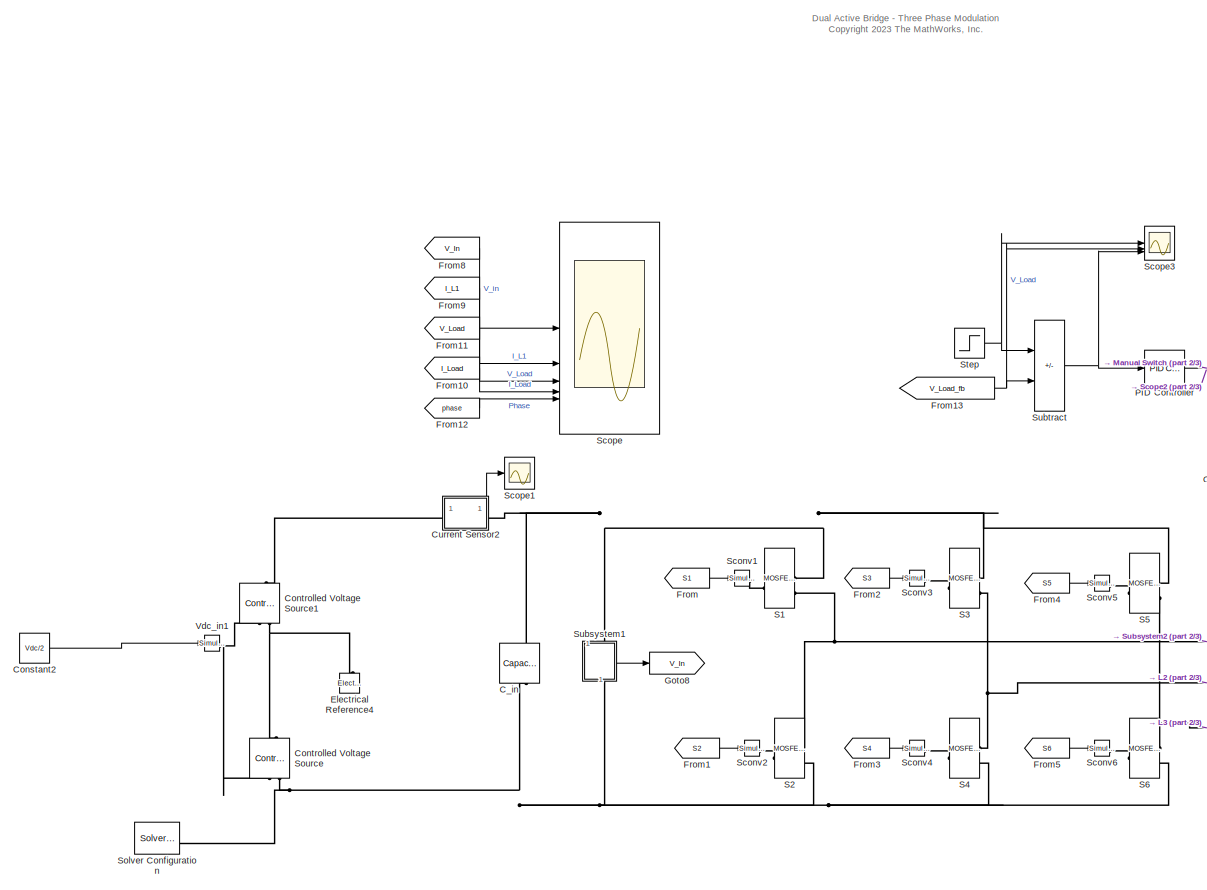
[diagram: root canvas - part 1/3, left side, full height]
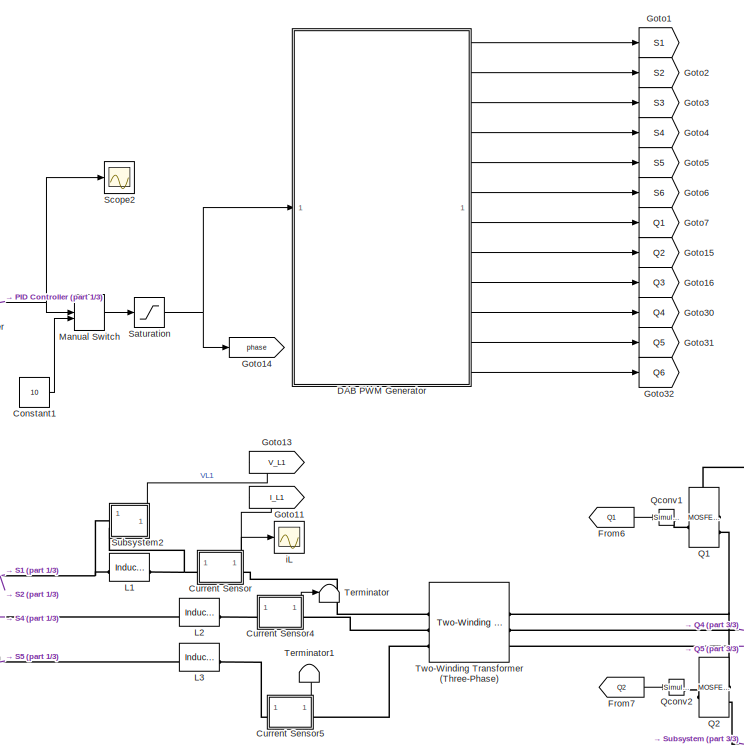
[diagram: root canvas - part 2/3, center side, full height]
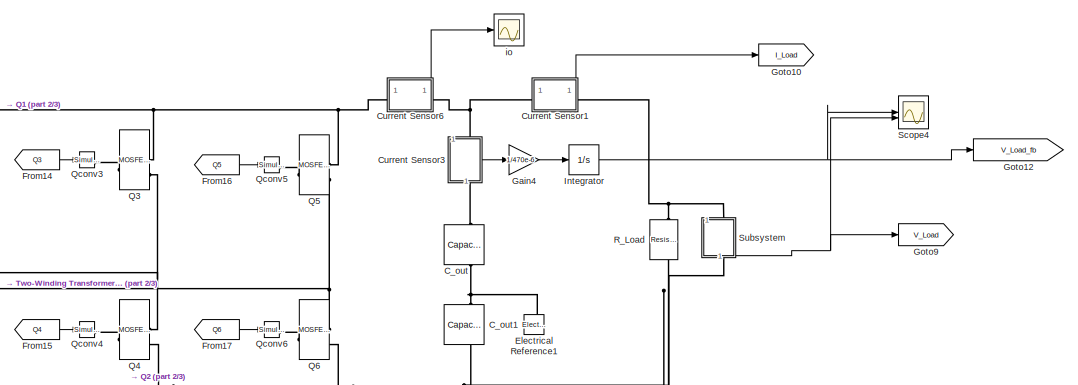
[diagram: root canvas - part 3/3, bottom right region]
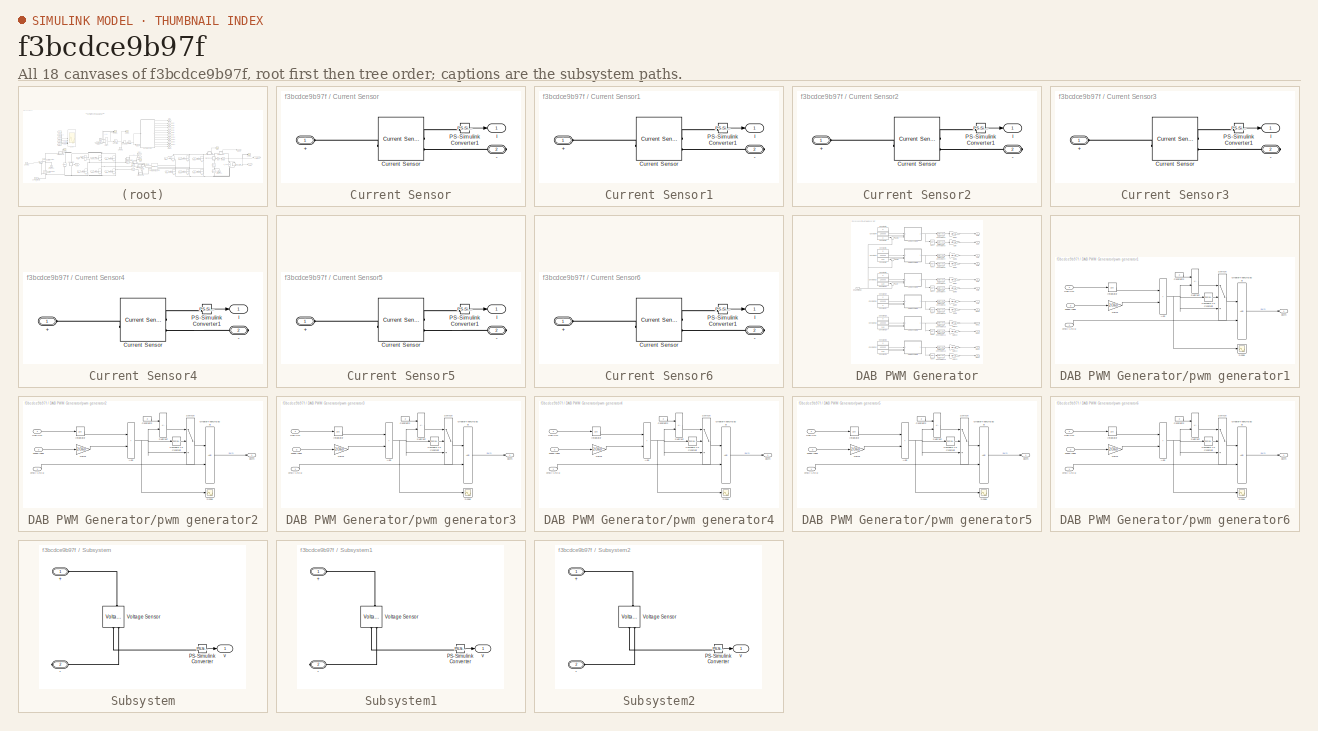
[diagram: thumbnail index - all 18 canvases of the model, root first then tree order]
MODEL slx_f3bcdce9b97f
KIND model
CONFIG AbsTol = 1e-3
CONFIG EnableMultiTasking = off
CONFIG FixedStep = auto
CONFIG MaxStep = 1/100000
CONFIG MinStep = auto
CONFIG RelTol = 1e-3
CONFIG SampleTimeConstraint = Unconstrained
CONFIG SolverName = ode23t
CONFIG StartFcn = tic
CONFIG StartTime = 0.0
CONFIG StopFcn = toc
CONFIG StopTime = 1/100000*10000
BLOCK [Reference] C_in  REF=fl_lib/Electrical/Electrical Elements/Capacitor
  NameLocation = left
  SourceBlock = fl_lib/Electrical/Electrical Elements/Capacitor
  SourceType = Capacitor
BLOCK [Reference] C_out  REF=fl_lib/Electrical/Electrical Elements/Capacitor
  NameLocation = left
  SourceBlock = fl_lib/Electrical/Electrical Elements/Capacitor
  SourceType = Capacitor
BLOCK [Reference] C_out1  REF=fl_lib/Electrical/Electrical Elements/Capacitor
  NameLocation = left
  SourceBlock = fl_lib/Electrical/Electrical Elements/Capacitor
  SourceType = Capacitor
BLOCK [Constant] Constant1
  SampleTime = -1
  Value = 10
BLOCK [Constant] Constant2
  Value = Vdc/2
BLOCK [Reference] Controlled Voltage Source  REF=fl_lib/Electrical/Electrical Sources/Controlled Voltage
Source
  NameLocation = right
  SourceBlock = fl_lib/Electrical/Electrical Sources/Controlled Voltage\nSource
  SourceType = Controlled Voltage\nSource
BLOCK [Reference] Controlled Voltage Source1  REF=fl_lib/Electrical/Electrical Sources/Controlled Voltage
Source
  NameLocation = right
  SourceBlock = fl_lib/Electrical/Electrical Sources/Controlled Voltage\nSource
  SourceType = Controlled Voltage\nSource
BLOCK [SubSystem] Current Sensor
  PortSchema = {"entries":[{"content":{"sides":[{"content":{"connectorIds":["LConn1"]},"type":"ConnectorPlacement.EquallySpacedRectSide","uuid":"e9388151-e471-4783-81c5-5134e1313d7c"},{"content":{"connectorIds":["RConn1"],"side":"RIGHT"},"type":"ConnectorPlacement.EquallySpacedRectSide","uuid":"bcb23f28-0826-4736-ab91-150a314eb643"},{"content":{"connectorIds":["Out1"],"side":"TOP"},"type":"ConnectorPlacement.Equ...<+251ch>  <repeated x9 — deduplicated; at blocks: Current Sensor, Current Sensor1, Current Sensor2, Current Sensor3, Current Sensor4, Current Sensor5, Current Sensor6, Subsystem, Subsystem1>
BLOCK [PMIOPort] Current Sensor/+
  Side = Left
BLOCK [PMIOPort] Current Sensor/-
  Port = 2
  Side = Right
BLOCK [Reference] Current Sensor/Current Sensor  REF=fl_lib/Electrical/Electrical Sensors/Current Sensor
  SourceBlock = fl_lib/Electrical/Electrical Sensors/Current Sensor
  SourceType = Current Sensor
BLOCK [Reference] Current Sensor/PS-Simulink Converter1  REF=nesl_utility/PS-Simulink
Converter
  SourceBlock = nesl_utility/PS-Simulink\nConverter
  SourceType = PS-Simulink\nConverter
BLOCK [Outport] Current Sensor/i
BLOCK [SubSystem] Current Sensor1
BLOCK [PMIOPort] Current Sensor1/+
  Side = Left
BLOCK [PMIOPort] Current Sensor1/-
  Port = 2
  Side = Right
BLOCK [Reference] Current Sensor1/Current Sensor  REF=fl_lib/Electrical/Electrical Sensors/Current Sensor
  SourceBlock = fl_lib/Electrical/Electrical Sensors/Current Sensor
  SourceType = Current Sensor
BLOCK [Reference] Current Sensor1/PS-Simulink Converter1  REF=nesl_utility/PS-Simulink
Converter
  SourceBlock = nesl_utility/PS-Simulink\nConverter
  SourceType = PS-Simulink\nConverter
BLOCK [Outport] Current Sensor1/i
BLOCK [SubSystem] Current Sensor2
BLOCK [PMIOPort] Current Sensor2/+
  Side = Left
BLOCK [PMIOPort] Current Sensor2/-
  Port = 2
  Side = Right
BLOCK [Reference] Current Sensor2/Current Sensor  REF=fl_lib/Electrical/Electrical Sensors/Current Sensor
  SourceBlock = fl_lib/Electrical/Electrical Sensors/Current Sensor
  SourceType = Current Sensor
BLOCK [Reference] Current Sensor2/PS-Simulink Converter1  REF=nesl_utility/PS-Simulink
Converter
  SourceBlock = nesl_utility/PS-Simulink\nConverter
  SourceType = PS-Simulink\nConverter
BLOCK [Outport] Current Sensor2/i
BLOCK [SubSystem] Current Sensor3
  NameLocation = left
BLOCK [PMIOPort] Current Sensor3/+
  Side = Left
BLOCK [PMIOPort] Current Sensor3/-
  Port = 2
  Side = Right
BLOCK [Reference] Current Sensor3/Current Sensor  REF=fl_lib/Electrical/Electrical Sensors/Current Sensor
  SourceBlock = fl_lib/Electrical/Electrical Sensors/Current Sensor
  SourceType = Current Sensor
BLOCK [Reference] Current Sensor3/PS-Simulink Converter1  REF=nesl_utility/PS-Simulink
Converter
  SourceBlock = nesl_utility/PS-Simulink\nConverter
  SourceType = PS-Simulink\nConverter
BLOCK [Outport] Current Sensor3/i
BLOCK [SubSystem] Current Sensor4
BLOCK [PMIOPort] Current Sensor4/+
  Side = Left
BLOCK [PMIOPort] Current Sensor4/-
  Port = 2
  Side = Right
BLOCK [Reference] Current Sensor4/Current Sensor  REF=fl_lib/Electrical/Electrical Sensors/Current Sensor
  SourceBlock = fl_lib/Electrical/Electrical Sensors/Current Sensor
  SourceType = Current Sensor
BLOCK [Reference] Current Sensor4/PS-Simulink Converter1  REF=nesl_utility/PS-Simulink
Converter
  SourceBlock = nesl_utility/PS-Simulink\nConverter
  SourceType = PS-Simulink\nConverter
BLOCK [Outport] Current Sensor4/i
BLOCK [SubSystem] Current Sensor5
BLOCK [PMIOPort] Current Sensor5/+
  Side = Left
BLOCK [PMIOPort] Current Sensor5/-
  Port = 2
  Side = Right
BLOCK [Reference] Current Sensor5/Current Sensor  REF=fl_lib/Electrical/Electrical Sensors/Current Sensor
  SourceBlock = fl_lib/Electrical/Electrical Sensors/Current Sensor
  SourceType = Current Sensor
BLOCK [Reference] Current Sensor5/PS-Simulink Converter1  REF=nesl_utility/PS-Simulink
Converter
  SourceBlock = nesl_utility/PS-Simulink\nConverter
  SourceType = PS-Simulink\nConverter
BLOCK [Outport] Current Sensor5/i
BLOCK [SubSystem] Current Sensor6
BLOCK [PMIOPort] Current Sensor6/+
  Side = Left
BLOCK [PMIOPort] Current Sensor6/-
  Port = 2
  Side = Right
BLOCK [Reference] Current Sensor6/Current Sensor  REF=fl_lib/Electrical/Electrical Sensors/Current Sensor
  SourceBlock = fl_lib/Electrical/Electrical Sensors/Current Sensor
  SourceType = Current Sensor
BLOCK [Reference] Current Sensor6/PS-Simulink Converter1  REF=nesl_utility/PS-Simulink
Converter
  SourceBlock = nesl_utility/PS-Simulink\nConverter
  SourceType = PS-Simulink\nConverter
BLOCK [Outport] Current Sensor6/i
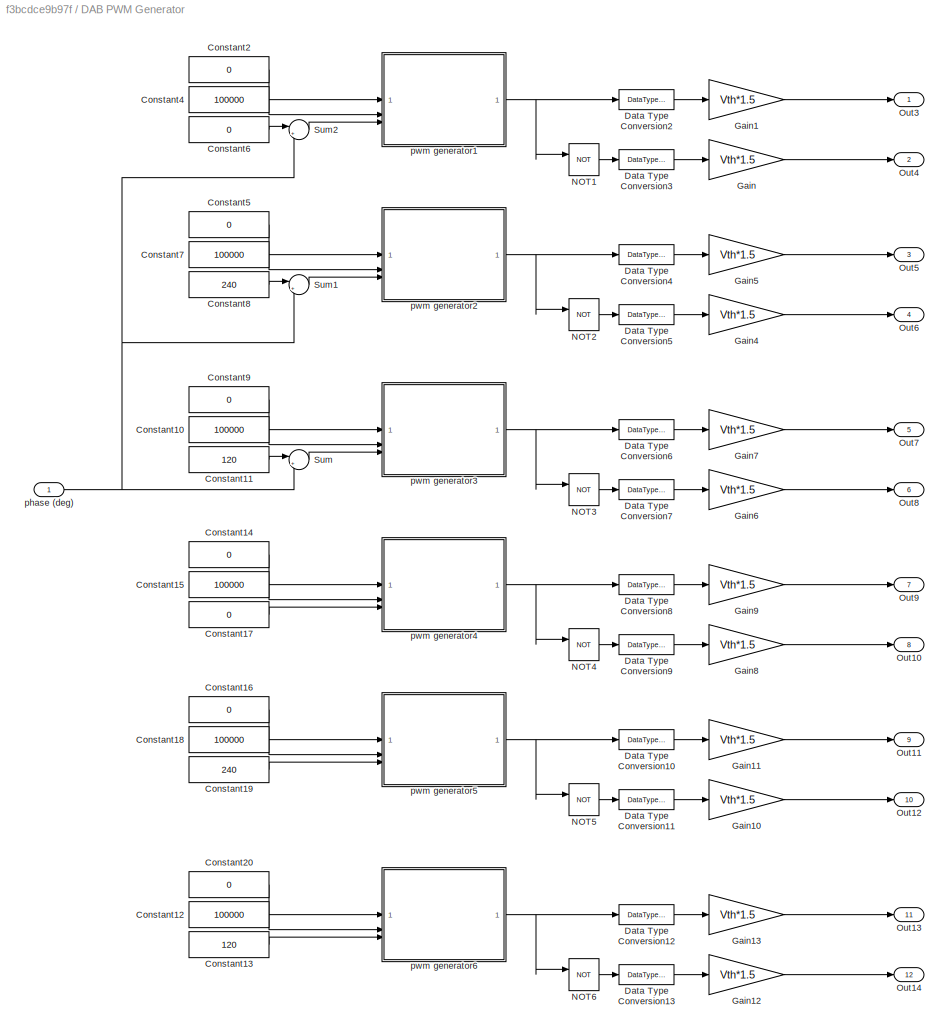
BLOCK [SubSystem] DAB PWM Generator
BLOCK [Constant] DAB PWM Generator/Constant10
  Value = 100000
BLOCK [Constant] DAB PWM Generator/Constant11
  Value = 120
BLOCK [Constant] DAB PWM Generator/Constant12
  Value = 100000
BLOCK [Constant] DAB PWM Generator/Constant13
  Value = 120
BLOCK [Constant] DAB PWM Generator/Constant14
  Value = 0
BLOCK [Constant] DAB PWM Generator/Constant15
  Value = 100000
BLOCK [Constant] DAB PWM Generator/Constant16
  Value = 0
BLOCK [Constant] DAB PWM Generator/Constant17
  Value = 0
BLOCK [Constant] DAB PWM Generator/Constant18
  Value = 100000
BLOCK [Constant] DAB PWM Generator/Constant19
  Value = 240
BLOCK [Constant] DAB PWM Generator/Constant2
  Value = 0
BLOCK [Constant] DAB PWM Generator/Constant20
  Value = 0
BLOCK [Constant] DAB PWM Generator/Constant4
  Value = 100000
BLOCK [Constant] DAB PWM Generator/Constant5
  Value = 0
BLOCK [Constant] DAB PWM Generator/Constant6
  Value = 0
BLOCK [Constant] DAB PWM Generator/Constant7
  Value = 100000
BLOCK [Constant] DAB PWM Generator/Constant8
  Value = 240
BLOCK [Constant] DAB PWM Generator/Constant9
  Value = 0
BLOCK [DataTypeConversion] DAB PWM Generator/Data Type Conversion10
  RndMeth = Floor
  SaturateOnIntegerOverflow = off
BLOCK [DataTypeConversion] DAB PWM Generator/Data Type Conversion11
  RndMeth = Floor
  SaturateOnIntegerOverflow = off
BLOCK [DataTypeConversion] DAB PWM Generator/Data Type Conversion12
  RndMeth = Floor
  SaturateOnIntegerOverflow = off
BLOCK [DataTypeConversion] DAB PWM Generator/Data Type Conversion13
  RndMeth = Floor
  SaturateOnIntegerOverflow = off
BLOCK [DataTypeConversion] DAB PWM Generator/Data Type Conversion2
  RndMeth = Floor
  SaturateOnIntegerOverflow = off
BLOCK [DataTypeConversion] DAB PWM Generator/Data Type Conversion3
  RndMeth = Floor
  SaturateOnIntegerOverflow = off
BLOCK [DataTypeConversion] DAB PWM Generator/Data Type Conversion4
  RndMeth = Floor
  SaturateOnIntegerOverflow = off
BLOCK [DataTypeConversion] DAB PWM Generator/Data Type Conversion5
  RndMeth = Floor
  SaturateOnIntegerOverflow = off
BLOCK [DataTypeConversion] DAB PWM Generator/Data Type Conversion6
  RndMeth = Floor
  SaturateOnIntegerOverflow = off
BLOCK [DataTypeConversion] DAB PWM Generator/Data Type Conversion7
  RndMeth = Floor
  SaturateOnIntegerOverflow = off
BLOCK [DataTypeConversion] DAB PWM Generator/Data Type Conversion8
  RndMeth = Floor
  SaturateOnIntegerOverflow = off
BLOCK [DataTypeConversion] DAB PWM Generator/Data Type Conversion9
  RndMeth = Floor
  SaturateOnIntegerOverflow = off
BLOCK [Gain] DAB PWM Generator/Gain
  Gain = Vth*1.5
BLOCK [Gain] DAB PWM Generator/Gain1
  Gain = Vth*1.5
BLOCK [Gain] DAB PWM Generator/Gain10
  Gain = Vth*1.5
BLOCK [Gain] DAB PWM Generator/Gain11
  Gain = Vth*1.5
BLOCK [Gain] DAB PWM Generator/Gain12
  Gain = Vth*1.5
BLOCK [Gain] DAB PWM Generator/Gain13
  Gain = Vth*1.5
BLOCK [Gain] DAB PWM Generator/Gain4
  Gain = Vth*1.5
BLOCK [Gain] DAB PWM Generator/Gain5
  Gain = Vth*1.5
BLOCK [Gain] DAB PWM Generator/Gain6
  Gain = Vth*1.5
BLOCK [Gain] DAB PWM Generator/Gain7
  Gain = Vth*1.5
BLOCK [Gain] DAB PWM Generator/Gain8
  Gain = Vth*1.5
BLOCK [Gain] DAB PWM Generator/Gain9
  Gain = Vth*1.5
BLOCK [Logic] DAB PWM Generator/NOT1
  AllPortsSameDT = off
  IconShape = distinctive
  Operator = NOT
  OutDataTypeStr = boolean
BLOCK [Logic] DAB PWM Generator/NOT2
  AllPortsSameDT = off
  IconShape = distinctive
  Operator = NOT
  OutDataTypeStr = boolean
BLOCK [Logic] DAB PWM Generator/NOT3
  AllPortsSameDT = off
  IconShape = distinctive
  Operator = NOT
  OutDataTypeStr = boolean
BLOCK [Logic] DAB PWM Generator/NOT4
  AllPortsSameDT = off
  IconShape = distinctive
  Operator = NOT
  OutDataTypeStr = boolean
BLOCK [Logic] DAB PWM Generator/NOT5
  AllPortsSameDT = off
  IconShape = distinctive
  Operator = NOT
  OutDataTypeStr = boolean
BLOCK [Logic] DAB PWM Generator/NOT6
  AllPortsSameDT = off
  IconShape = distinctive
  Operator = NOT
  OutDataTypeStr = boolean
BLOCK [Outport] DAB PWM Generator/Out10
  Port = 8
BLOCK [Outport] DAB PWM Generator/Out11
  Port = 9
BLOCK [Outport] DAB PWM Generator/Out12
  Port = 10
BLOCK [Outport] DAB PWM Generator/Out13
  Port = 11
BLOCK [Outport] DAB PWM Generator/Out14
  Port = 12
BLOCK [Outport] DAB PWM Generator/Out3
BLOCK [Outport] DAB PWM Generator/Out4
  Port = 2
BLOCK [Outport] DAB PWM Generator/Out5
  Port = 3
BLOCK [Outport] DAB PWM Generator/Out6
  Port = 4
BLOCK [Outport] DAB PWM Generator/Out7
  Port = 5
BLOCK [Outport] DAB PWM Generator/Out8
  Port = 6
BLOCK [Outport] DAB PWM Generator/Out9
  Port = 7
BLOCK [Sum] DAB PWM Generator/Sum
  Inputs = |++
BLOCK [Sum] DAB PWM Generator/Sum1
  Inputs = |++
BLOCK [Sum] DAB PWM Generator/Sum2
  Inputs = |++
BLOCK [Inport] DAB PWM Generator/phase (deg)
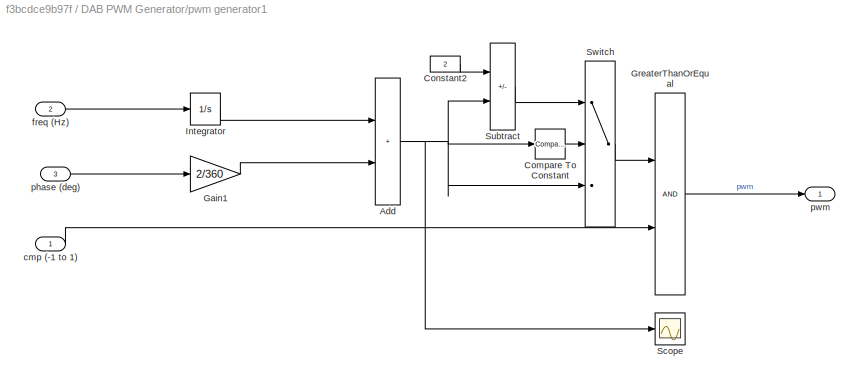
BLOCK [SubSystem] DAB PWM Generator/pwm generator1
BLOCK [Sum] DAB PWM Generator/pwm generator1/Add
  IconShape = rectangular
BLOCK [Reference] DAB PWM Generator/pwm generator1/Compare To Constant  REF=simulink/Logic and Bit
Operations/Compare
To Constant
  NameLocation = top
  SourceBlock = simulink/Logic and Bit\nOperations/Compare\nTo Constant
  SourceType = Compare To Constant
BLOCK [Constant] DAB PWM Generator/pwm generator1/Constant2
  Value = 2
BLOCK [Gain] DAB PWM Generator/pwm generator1/Gain1
  Gain = 2/360
BLOCK [RelationalOperator] DAB PWM Generator/pwm generator1/GreaterThanOrEqual
  InputSameDT = off
  OutDataTypeStr = boolean
  RndMeth = Simplest
BLOCK [Integrator] DAB PWM Generator/pwm generator1/Integrator
  WrapState = on
  WrappedStateLowerValue = -1
  WrappedStateUpperValue = 1
BLOCK [Scope] DAB PWM Generator/pwm generator1/Scope
  Floating = off
  NumInputPorts = 1
  ScopeSpecificationString = Simulink.scopes.TimeScopeBlockCfg('CurrentConfiguration', extmgr.ConfigurationSet(extmgr.Configuration('Core','General UI',true),extmgr.Configuration('Core','Source UI',true),extmgr.Configuration('Sources','WiredSimulink',true,'DataLoggingVariableName','ScopeData1'),extmgr.Configuration('Visuals','Time Domain',true,'SerializedDisplays',{struct('MinYLimReal','-1.25','MaxYLimReal','1.25','YLabelReal...<+1344ch>  <repeated x6 — deduplicated; at blocks: Scope>
BLOCK [Sum] DAB PWM Generator/pwm generator1/Subtract
  IconShape = rectangular
  Inputs = -+
BLOCK [Switch] DAB PWM Generator/pwm generator1/Switch
  Criteria = u2 > Threshold
  InputSameDT = off
  SaturateOnIntegerOverflow = off
BLOCK [Inport] DAB PWM Generator/pwm generator1/cmp (-1 to 1)
BLOCK [Inport] DAB PWM Generator/pwm generator1/freq (Hz)
  Port = 2
BLOCK [Inport] DAB PWM Generator/pwm generator1/phase (deg)
  Port = 3
BLOCK [Outport] DAB PWM Generator/pwm generator1/pwm
BLOCK [SubSystem] DAB PWM Generator/pwm generator2
BLOCK [Sum] DAB PWM Generator/pwm generator2/Add
  IconShape = rectangular
BLOCK [Reference] DAB PWM Generator/pwm generator2/Compare To Constant  REF=simulink/Logic and Bit
Operations/Compare
To Constant
  NameLocation = top
  SourceBlock = simulink/Logic and Bit\nOperations/Compare\nTo Constant
  SourceType = Compare To Constant
BLOCK [Constant] DAB PWM Generator/pwm generator2/Constant2
  Value = 2
BLOCK [Gain] DAB PWM Generator/pwm generator2/Gain1
  Gain = 2/360
BLOCK [RelationalOperator] DAB PWM Generator/pwm generator2/GreaterThanOrEqual
  InputSameDT = off
  OutDataTypeStr = boolean
  RndMeth = Simplest
BLOCK [Integrator] DAB PWM Generator/pwm generator2/Integrator
  WrapState = on
  WrappedStateLowerValue = -1
  WrappedStateUpperValue = 1
BLOCK [Scope] DAB PWM Generator/pwm generator2/Scope
  Floating = off
  NumInputPorts = 1
BLOCK [Sum] DAB PWM Generator/pwm generator2/Subtract
  IconShape = rectangular
  Inputs = -+
BLOCK [Switch] DAB PWM Generator/pwm generator2/Switch
  Criteria = u2 > Threshold
  InputSameDT = off
  SaturateOnIntegerOverflow = off
BLOCK [Inport] DAB PWM Generator/pwm generator2/cmp (-1 to 1)
BLOCK [Inport] DAB PWM Generator/pwm generator2/freq (Hz)
  Port = 2
BLOCK [Inport] DAB PWM Generator/pwm generator2/phase (deg)
  Port = 3
BLOCK [Outport] DAB PWM Generator/pwm generator2/pwm
BLOCK [SubSystem] DAB PWM Generator/pwm generator3
BLOCK [Sum] DAB PWM Generator/pwm generator3/Add
  IconShape = rectangular
BLOCK [Reference] DAB PWM Generator/pwm generator3/Compare To Constant  REF=simulink/Logic and Bit
Operations/Compare
To Constant
  NameLocation = top
  SourceBlock = simulink/Logic and Bit\nOperations/Compare\nTo Constant
  SourceType = Compare To Constant
BLOCK [Constant] DAB PWM Generator/pwm generator3/Constant2
  Value = 2
BLOCK [Gain] DAB PWM Generator/pwm generator3/Gain1
  Gain = 2/360
BLOCK [RelationalOperator] DAB PWM Generator/pwm generator3/GreaterThanOrEqual
  InputSameDT = off
  OutDataTypeStr = boolean
  RndMeth = Simplest
BLOCK [Integrator] DAB PWM Generator/pwm generator3/Integrator
  WrapState = on
  WrappedStateLowerValue = -1
  WrappedStateUpperValue = 1
BLOCK [Scope] DAB PWM Generator/pwm generator3/Scope
  Floating = off
  NumInputPorts = 1
BLOCK [Sum] DAB PWM Generator/pwm generator3/Subtract
  IconShape = rectangular
  Inputs = -+
BLOCK [Switch] DAB PWM Generator/pwm generator3/Switch
  Criteria = u2 > Threshold
  InputSameDT = off
  SaturateOnIntegerOverflow = off
BLOCK [Inport] DAB PWM Generator/pwm generator3/cmp (-1 to 1)
BLOCK [Inport] DAB PWM Generator/pwm generator3/freq (Hz)
  Port = 2
BLOCK [Inport] DAB PWM Generator/pwm generator3/phase (deg)
  Port = 3
BLOCK [Outport] DAB PWM Generator/pwm generator3/pwm
BLOCK [SubSystem] DAB PWM Generator/pwm generator4
BLOCK [Sum] DAB PWM Generator/pwm generator4/Add
  IconShape = rectangular
BLOCK [Reference] DAB PWM Generator/pwm generator4/Compare To Constant  REF=simulink/Logic and Bit
Operations/Compare
To Constant
  NameLocation = top
  SourceBlock = simulink/Logic and Bit\nOperations/Compare\nTo Constant
  SourceType = Compare To Constant
BLOCK [Constant] DAB PWM Generator/pwm generator4/Constant2
  Value = 2
BLOCK [Gain] DAB PWM Generator/pwm generator4/Gain1
  Gain = 2/360
BLOCK [RelationalOperator] DAB PWM Generator/pwm generator4/GreaterThanOrEqual
  InputSameDT = off
  OutDataTypeStr = boolean
  RndMeth = Simplest
BLOCK [Integrator] DAB PWM Generator/pwm generator4/Integrator
  WrapState = on
  WrappedStateLowerValue = -1
  WrappedStateUpperValue = 1
BLOCK [Scope] DAB PWM Generator/pwm generator4/Scope
  Floating = off
  NumInputPorts = 1
BLOCK [Sum] DAB PWM Generator/pwm generator4/Subtract
  IconShape = rectangular
  Inputs = -+
BLOCK [Switch] DAB PWM Generator/pwm generator4/Switch
  Criteria = u2 > Threshold
  InputSameDT = off
  SaturateOnIntegerOverflow = off
BLOCK [Inport] DAB PWM Generator/pwm generator4/cmp (-1 to 1)
BLOCK [Inport] DAB PWM Generator/pwm generator4/freq (Hz)
  Port = 2
BLOCK [Inport] DAB PWM Generator/pwm generator4/phase (deg)
  Port = 3
BLOCK [Outport] DAB PWM Generator/pwm generator4/pwm
BLOCK [SubSystem] DAB PWM Generator/pwm generator5
BLOCK [Sum] DAB PWM Generator/pwm generator5/Add
  IconShape = rectangular
BLOCK [Reference] DAB PWM Generator/pwm generator5/Compare To Constant  REF=simulink/Logic and Bit
Operations/Compare
To Constant
  NameLocation = top
  SourceBlock = simulink/Logic and Bit\nOperations/Compare\nTo Constant
  SourceType = Compare To Constant
BLOCK [Constant] DAB PWM Generator/pwm generator5/Constant2
  Value = 2
BLOCK [Gain] DAB PWM Generator/pwm generator5/Gain1
  Gain = 2/360
BLOCK [RelationalOperator] DAB PWM Generator/pwm generator5/GreaterThanOrEqual
  InputSameDT = off
  OutDataTypeStr = boolean
  RndMeth = Simplest
BLOCK [Integrator] DAB PWM Generator/pwm generator5/Integrator
  WrapState = on
  WrappedStateLowerValue = -1
  WrappedStateUpperValue = 1
BLOCK [Scope] DAB PWM Generator/pwm generator5/Scope
  Floating = off
  NumInputPorts = 1
BLOCK [Sum] DAB PWM Generator/pwm generator5/Subtract
  IconShape = rectangular
  Inputs = -+
BLOCK [Switch] DAB PWM Generator/pwm generator5/Switch
  Criteria = u2 > Threshold
  InputSameDT = off
  SaturateOnIntegerOverflow = off
BLOCK [Inport] DAB PWM Generator/pwm generator5/cmp (-1 to 1)
BLOCK [Inport] DAB PWM Generator/pwm generator5/freq (Hz)
  Port = 2
BLOCK [Inport] DAB PWM Generator/pwm generator5/phase (deg)
  Port = 3
BLOCK [Outport] DAB PWM Generator/pwm generator5/pwm
BLOCK [SubSystem] DAB PWM Generator/pwm generator6
BLOCK [Sum] DAB PWM Generator/pwm generator6/Add
  IconShape = rectangular
BLOCK [Reference] DAB PWM Generator/pwm generator6/Compare To Constant  REF=simulink/Logic and Bit
Operations/Compare
To Constant
  NameLocation = top
  SourceBlock = simulink/Logic and Bit\nOperations/Compare\nTo Constant
  SourceType = Compare To Constant
BLOCK [Constant] DAB PWM Generator/pwm generator6/Constant2
  Value = 2
BLOCK [Gain] DAB PWM Generator/pwm generator6/Gain1
  Gain = 2/360
BLOCK [RelationalOperator] DAB PWM Generator/pwm generator6/GreaterThanOrEqual
  InputSameDT = off
  OutDataTypeStr = boolean
  RndMeth = Simplest
BLOCK [Integrator] DAB PWM Generator/pwm generator6/Integrator
  WrapState = on
  WrappedStateLowerValue = -1
  WrappedStateUpperValue = 1
BLOCK [Scope] DAB PWM Generator/pwm generator6/Scope
  Floating = off
  NumInputPorts = 1
BLOCK [Sum] DAB PWM Generator/pwm generator6/Subtract
  IconShape = rectangular
  Inputs = -+
BLOCK [Switch] DAB PWM Generator/pwm generator6/Switch
  Criteria = u2 > Threshold
  InputSameDT = off
  SaturateOnIntegerOverflow = off
BLOCK [Inport] DAB PWM Generator/pwm generator6/cmp (-1 to 1)
BLOCK [Inport] DAB PWM Generator/pwm generator6/freq (Hz)
  Port = 2
BLOCK [Inport] DAB PWM Generator/pwm generator6/phase (deg)
  Port = 3
BLOCK [Outport] DAB PWM Generator/pwm generator6/pwm
BLOCK [Reference] Electrical Reference1  REF=fl_lib/Electrical/Electrical Elements/Electrical Reference
  NameLocation = right
  SourceBlock = fl_lib/Electrical/Electrical Elements/Electrical Reference
  SourceType = Electrical Reference
BLOCK [Reference] Electrical Reference4  REF=fl_lib/Electrical/Electrical Elements/Electrical Reference
  NameLocation = right
  SourceBlock = fl_lib/Electrical/Electrical Elements/Electrical Reference
  SourceType = Electrical Reference
BLOCK [From] From
  GotoTag = S1
BLOCK [From] From1
  GotoTag = S2
BLOCK [From] From10
  GotoTag = I_Load
BLOCK [From] From11
  GotoTag = V_Load
BLOCK [From] From12
  GotoTag = phase
BLOCK [From] From13
  GotoTag = V_Load_fb
BLOCK [From] From14
  GotoTag = Q3
BLOCK [From] From15
  GotoTag = Q4
BLOCK [From] From16
  GotoTag = Q5
BLOCK [From] From17
  GotoTag = Q6
BLOCK [From] From2
  GotoTag = S3
BLOCK [From] From3
  GotoTag = S4
BLOCK [From] From4
  GotoTag = S5
BLOCK [From] From5
  GotoTag = S6
BLOCK [From] From6
  GotoTag = Q1
BLOCK [From] From7
  GotoTag = Q2
BLOCK [From] From8
  GotoTag = V_In
BLOCK [From] From9
  GotoTag = I_L1
BLOCK [Gain] Gain4
  Gain = 1/470e-6
BLOCK [Goto] Goto1
  GotoTag = S1
BLOCK [Goto] Goto10
  GotoTag = I_Load
BLOCK [Goto] Goto11
  GotoTag = I_L1
BLOCK [Goto] Goto12
  GotoTag = V_Load_fb
BLOCK [Goto] Goto13
  GotoTag = V_L1
BLOCK [Goto] Goto14
  GotoTag = phase
BLOCK [Goto] Goto15
  GotoTag = Q2
BLOCK [Goto] Goto16
  GotoTag = Q3
BLOCK [Goto] Goto2
  GotoTag = S2
BLOCK [Goto] Goto3
  GotoTag = S3
BLOCK [Goto] Goto30
  GotoTag = Q4
BLOCK [Goto] Goto31
  GotoTag = Q5
BLOCK [Goto] Goto32
  GotoTag = Q6
BLOCK [Goto] Goto4
  GotoTag = S4
BLOCK [Goto] Goto5
  GotoTag = S5
BLOCK [Goto] Goto6
  GotoTag = S6
BLOCK [Goto] Goto7
  GotoTag = Q1
BLOCK [Goto] Goto8
  GotoTag = V_In
BLOCK [Goto] Goto9
  GotoTag = V_Load
BLOCK [Integrator] Integrator
  InitialCondition = 400
BLOCK [Reference] L1  REF=fl_lib/Electrical/Electrical Elements/Inductor
  SourceBlock = fl_lib/Electrical/Electrical Elements/Inductor
  SourceType = Inductor
BLOCK [Reference] L2  REF=fl_lib/Electrical/Electrical Elements/Inductor
  SourceBlock = fl_lib/Electrical/Electrical Elements/Inductor
  SourceType = Inductor
BLOCK [Reference] L3  REF=fl_lib/Electrical/Electrical Elements/Inductor
  SourceBlock = fl_lib/Electrical/Electrical Elements/Inductor
  SourceType = Inductor
BLOCK [ManualSwitch] Manual Switch
BLOCK [Reference] PID Controller  REF=slpidlib/PID Controller
  SourceBlock = slpidlib/PID Controller
  SourceType = PID 1dof
BLOCK [Reference] Q1  REF=ee_lib/Semiconductors &
Converters/MOSFET
(Ideal,
Switching)
  SourceBlock = ee_lib/Semiconductors &\nConverters/MOSFET\n(Ideal,\nSwitching)
  SourceType = MOSFET\n(Ideal,\nSwitching)
BLOCK [Reference] Q2  REF=ee_lib/Semiconductors &
Converters/MOSFET
(Ideal,
Switching)
  SourceBlock = ee_lib/Semiconductors &\nConverters/MOSFET\n(Ideal,\nSwitching)
  SourceType = MOSFET\n(Ideal,\nSwitching)
BLOCK [Reference] Q3  REF=ee_lib/Semiconductors &
Converters/MOSFET
(Ideal,
Switching)
  SourceBlock = ee_lib/Semiconductors &\nConverters/MOSFET\n(Ideal,\nSwitching)
  SourceType = MOSFET\n(Ideal,\nSwitching)
BLOCK [Reference] Q4  REF=ee_lib/Semiconductors &
Converters/MOSFET
(Ideal,
Switching)
  SourceBlock = ee_lib/Semiconductors &\nConverters/MOSFET\n(Ideal,\nSwitching)
  SourceType = MOSFET\n(Ideal,\nSwitching)
BLOCK [Reference] Q5  REF=ee_lib/Semiconductors &
Converters/MOSFET
(Ideal,
Switching)
  SourceBlock = ee_lib/Semiconductors &\nConverters/MOSFET\n(Ideal,\nSwitching)
  SourceType = MOSFET\n(Ideal,\nSwitching)
BLOCK [Reference] Q6  REF=ee_lib/Semiconductors &
Converters/MOSFET
(Ideal,
Switching)
  SourceBlock = ee_lib/Semiconductors &\nConverters/MOSFET\n(Ideal,\nSwitching)
  SourceType = MOSFET\n(Ideal,\nSwitching)
BLOCK [Reference] Qconv1  REF=nesl_utility/Simulink-PS
Converter
  SourceBlock = nesl_utility/Simulink-PS\nConverter
  SourceType = Simulink-PS\nConverter
BLOCK [Reference] Qconv2  REF=nesl_utility/Simulink-PS
Converter
  SourceBlock = nesl_utility/Simulink-PS\nConverter
  SourceType = Simulink-PS\nConverter
BLOCK [Reference] Qconv3  REF=nesl_utility/Simulink-PS
Converter
  SourceBlock = nesl_utility/Simulink-PS\nConverter
  SourceType = Simulink-PS\nConverter
BLOCK [Reference] Qconv4  REF=nesl_utility/Simulink-PS
Converter
  SourceBlock = nesl_utility/Simulink-PS\nConverter
  SourceType = Simulink-PS\nConverter
BLOCK [Reference] Qconv5  REF=nesl_utility/Simulink-PS
Converter
  SourceBlock = nesl_utility/Simulink-PS\nConverter
  SourceType = Simulink-PS\nConverter
BLOCK [Reference] Qconv6  REF=nesl_utility/Simulink-PS
Converter
  SourceBlock = nesl_utility/Simulink-PS\nConverter
  SourceType = Simulink-PS\nConverter
BLOCK [Reference] R_Load  REF=fl_lib/Electrical/Electrical Elements/Resistor
  NameLocation = left
  SourceBlock = fl_lib/Electrical/Electrical Elements/Resistor
  SourceType = Resistor
BLOCK [Reference] S1  REF=ee_lib/Semiconductors &
Converters/MOSFET
(Ideal,
Switching)
  SourceBlock = ee_lib/Semiconductors &\nConverters/MOSFET\n(Ideal,\nSwitching)
  SourceType = MOSFET\n(Ideal,\nSwitching)
BLOCK [Reference] S2  REF=ee_lib/Semiconductors &
Converters/MOSFET
(Ideal,
Switching)
  SourceBlock = ee_lib/Semiconductors &\nConverters/MOSFET\n(Ideal,\nSwitching)
  SourceType = MOSFET\n(Ideal,\nSwitching)
BLOCK [Reference] S3  REF=ee_lib/Semiconductors &
Converters/MOSFET
(Ideal,
Switching)
  SourceBlock = ee_lib/Semiconductors &\nConverters/MOSFET\n(Ideal,\nSwitching)
  SourceType = MOSFET\n(Ideal,\nSwitching)
BLOCK [Reference] S4  REF=ee_lib/Semiconductors &
Converters/MOSFET
(Ideal,
Switching)
  SourceBlock = ee_lib/Semiconductors &\nConverters/MOSFET\n(Ideal,\nSwitching)
  SourceType = MOSFET\n(Ideal,\nSwitching)
BLOCK [Reference] S5  REF=ee_lib/Semiconductors &
Converters/MOSFET
(Ideal,
Switching)
  SourceBlock = ee_lib/Semiconductors &\nConverters/MOSFET\n(Ideal,\nSwitching)
  SourceType = MOSFET\n(Ideal,\nSwitching)
BLOCK [Reference] S6  REF=ee_lib/Semiconductors &
Converters/MOSFET
(Ideal,
Switching)
  SourceBlock = ee_lib/Semiconductors &\nConverters/MOSFET\n(Ideal,\nSwitching)
  SourceType = MOSFET\n(Ideal,\nSwitching)
BLOCK [Saturate] Saturation
  LowerLimit = 0
  UpperLimit = 180
BLOCK [Reference] Sconv1  REF=nesl_utility/Simulink-PS
Converter
  SourceBlock = nesl_utility/Simulink-PS\nConverter
  SourceType = Simulink-PS\nConverter
BLOCK [Reference] Sconv2  REF=nesl_utility/Simulink-PS
Converter
  SourceBlock = nesl_utility/Simulink-PS\nConverter
  SourceType = Simulink-PS\nConverter
BLOCK [Reference] Sconv3  REF=nesl_utility/Simulink-PS
Converter
  SourceBlock = nesl_utility/Simulink-PS\nConverter
  SourceType = Simulink-PS\nConverter
BLOCK [Reference] Sconv4  REF=nesl_utility/Simulink-PS
Converter
  SourceBlock = nesl_utility/Simulink-PS\nConverter
  SourceType = Simulink-PS\nConverter
BLOCK [Reference] Sconv5  REF=nesl_utility/Simulink-PS
Converter
  SourceBlock = nesl_utility/Simulink-PS\nConverter
  SourceType = Simulink-PS\nConverter
BLOCK [Reference] Sconv6  REF=nesl_utility/Simulink-PS
Converter
  SourceBlock = nesl_utility/Simulink-PS\nConverter
  SourceType = Simulink-PS\nConverter
BLOCK [Scope] Scope
  Floating = off
  NumInputPorts = 5
  ScopeSpecificationString = Simulink.scopes.TimeScopeBlockCfg('CurrentConfiguration', extmgr.ConfigurationSet(extmgr.Configuration('Core','General UI',true),extmgr.Configuration('Core','Source UI',true),extmgr.Configuration('Sources','WiredSimulink',true),extmgr.Configuration('Visuals','Time Domain',true,'SerializedDisplays',{struct('MinYLimReal','700.00000','MaxYLimReal','900.00000','YLabelReal','','MinYLimMag','700.00000',...<+4896ch>
BLOCK [Scope] Scope1
  Floating = off
  NumInputPorts = 1
  ScopeSpecificationString = Simulink.scopes.TimeScopeBlockCfg('CurrentConfiguration', extmgr.ConfigurationSet(extmgr.Configuration('Core','General UI',true),extmgr.Configuration('Core','Source UI',true),extmgr.Configuration('Sources','WiredSimulink',true,'DataLoggingVariableName','ScopeData2'),extmgr.Configuration('Visuals','Time Domain',true,'SerializedDisplays',{struct('MinYLimReal','-11.15273','MaxYLimReal','19.49048','YL...<+1380ch>
BLOCK [Scope] Scope2
  Floating = off
  NumInputPorts = 1
  ScopeSpecificationString = Simulink.scopes.TimeScopeBlockCfg('CurrentConfiguration', extmgr.ConfigurationSet(extmgr.Configuration('Core','General UI',true),extmgr.Configuration('Core','Source UI',true),extmgr.Configuration('Sources','WiredSimulink',true,'DataLoggingVariableName','ScopeData1'),extmgr.Configuration('Visuals','Time Domain',true,'SerializedDisplays',{struct('MinYLimReal','21.0947','MaxYLimReal','37.65619','YLab...<+1419ch>
BLOCK [Scope] Scope3
  Floating = off
  NumInputPorts = 3
  ScopeSpecificationString = Simulink.scopes.TimeScopeBlockCfg('CurrentConfiguration', extmgr.ConfigurationSet(extmgr.Configuration('Core','General UI',true),extmgr.Configuration('Core','Source UI',true),extmgr.Configuration('Sources','WiredSimulink',true,'DataLoggingVariableName','ScopeData2'),extmgr.Configuration('Visuals','Time Domain',true,'SerializedDisplays',{struct('MinYLimReal','-64.54291','MaxYLimReal','564.54291','Y...<+1393ch>
BLOCK [Scope] Scope4
  Floating = off
  NumInputPorts = 2
  ScopeSpecificationString = Simulink.scopes.TimeScopeBlockCfg('CurrentConfiguration', extmgr.ConfigurationSet(extmgr.Configuration('Core','General UI',true),extmgr.Configuration('Core','Source UI',true),extmgr.Configuration('Sources','WiredSimulink',true,'DataLoggingVariableName','ScopeData3'),extmgr.Configuration('Visuals','Time Domain',true,'SerializedDisplays',{struct('MinYLimReal','396.35128','MaxYLimReal','396.36384','Y...<+1439ch>
BLOCK [Reference] Solver Configuration  REF=nesl_utility/Solver
Configuration
  SourceBlock = nesl_utility/Solver\nConfiguration
  SourceType = Solver\nConfiguration
BLOCK [Step] Step
  After = 500
  Before = 400
  SampleTime = 0
  Time = 1/100000*10000/2
BLOCK [SubSystem] Subsystem
  NameLocation = left
BLOCK [PMIOPort] Subsystem/+
  Side = Left
BLOCK [PMIOPort] Subsystem/-
  Port = 2
  Side = Right
BLOCK [Reference] Subsystem/PS-Simulink Converter  REF=nesl_utility/PS-Simulink
Converter
  SourceBlock = nesl_utility/PS-Simulink\nConverter
  SourceType = PS-Simulink\nConverter
BLOCK [Reference] Subsystem/Voltage Sensor  REF=fl_lib/Electrical/Electrical Sensors/Voltage Sensor
  NameLocation = right
  SourceBlock = fl_lib/Electrical/Electrical Sensors/Voltage Sensor
  SourceType = Voltage Sensor
BLOCK [Outport] Subsystem/v
BLOCK [SubSystem] Subsystem1
  NameLocation = left
BLOCK [PMIOPort] Subsystem1/+
  Side = Left
BLOCK [PMIOPort] Subsystem1/-
  Port = 2
  Side = Right
BLOCK [Reference] Subsystem1/PS-Simulink Converter  REF=nesl_utility/PS-Simulink
Converter
  SourceBlock = nesl_utility/PS-Simulink\nConverter
  SourceType = PS-Simulink\nConverter
BLOCK [Reference] Subsystem1/Voltage Sensor  REF=fl_lib/Electrical/Electrical Sensors/Voltage Sensor
  NameLocation = right
  SourceBlock = fl_lib/Electrical/Electrical Sensors/Voltage Sensor
  SourceType = Voltage Sensor
BLOCK [Outport] Subsystem1/v
BLOCK [SubSystem] Subsystem2
  PortSchema = {"entries":[{"content":{"sides":[{"content":{"connectorIds":["LConn1","LConn2"]},"type":"ConnectorPlacement.EquallySpacedRectSide","uuid":"e9388151-e471-4783-81c5-5134e1313d7c"},{"content":{"connectorIds":[],"side":"RIGHT"},"type":"ConnectorPlacement.EquallySpacedRectSide","uuid":"bcb23f28-0826-4736-ab91-150a314eb643"},{"content":{"connectorIds":["Out1"],"side":"TOP"},"type":"ConnectorPlacement.Eq...<+252ch>
BLOCK [PMIOPort] Subsystem2/+
  Side = Left
BLOCK [PMIOPort] Subsystem2/-
  Port = 2
  Side = Left
BLOCK [Reference] Subsystem2/PS-Simulink Converter  REF=nesl_utility/PS-Simulink
Converter
  SourceBlock = nesl_utility/PS-Simulink\nConverter
  SourceType = PS-Simulink\nConverter
BLOCK [Reference] Subsystem2/Voltage Sensor  REF=fl_lib/Electrical/Electrical Sensors/Voltage Sensor
  NameLocation = right
  SourceBlock = fl_lib/Electrical/Electrical Sensors/Voltage Sensor
  SourceType = Voltage Sensor
BLOCK [Outport] Subsystem2/v
BLOCK [Sum] Subtract
  IconShape = rectangular
  Inputs = +-
BLOCK [Terminator] Terminator
BLOCK [Terminator] Terminator1
BLOCK [Reference] Two-Winding Transformer (Three-Phase)  REF=ee_lib/Passive/Transformers/Two-Winding
Transformer
(Three-Phase)
  SourceBlock = ee_lib/Passive/Transformers/Two-Winding\nTransformer\n(Three-Phase)
  SourceType = Two-Winding\nTransformer\n(Three-Phase)
BLOCK [Reference] Vdc_in1  REF=nesl_utility/Simulink-PS
Converter
  SourceBlock = nesl_utility/Simulink-PS\nConverter
  SourceType = Simulink-PS\nConverter
BLOCK [Scope] iL
  Floating = off
  NumInputPorts = 1
  ScopeSpecificationString = Simulink.scopes.TimeScopeBlockCfg('CurrentConfiguration', extmgr.ConfigurationSet(extmgr.Configuration('Core','General UI',true,'FigureColor',[1 1 1]),extmgr.Configuration('Core','Source UI',true),extmgr.Configuration('Sources','WiredSimulink',true,'DataLoggingVariableName','ScopeData1'),extmgr.Configuration('Visuals','Time Domain',true,'SerializedDisplays',{struct('MinYLimReal','-47.54404','MaxYL...<+1731ch>
BLOCK [Scope] io
  Floating = off
  NumInputPorts = 1
  ScopeSpecificationString = Simulink.scopes.TimeScopeBlockCfg('CurrentConfiguration', extmgr.ConfigurationSet(extmgr.Configuration('Core','General UI',true,'FigureColor',[1 1 1]),extmgr.Configuration('Core','Source UI',true),extmgr.Configuration('Sources','WiredSimulink',true,'DataLoggingVariableName','ScopeData2'),extmgr.Configuration('Visuals','Time Domain',true,'SerializedDisplays',{struct('MinYLimReal','-44.84107','MaxYL...<+1747ch>
ANNOTATION (root): Dual Active Bridge - Three Phase Modulation <copyright redacted>
LINE Constant1:1 -> Manual Switch:2
LINE Constant2:1 -> Vdc_in1:1
LINE Current Sensor/PS-Simulink Converter1:1 -> Current Sensor/i:1
LINE Current Sensor1/PS-Simulink Converter1:1 -> Current Sensor1/i:1
LINE Current Sensor1:1 -> Goto10:1
LINE Current Sensor2/PS-Simulink Converter1:1 -> Current Sensor2/i:1
LINE Current Sensor2:1 -> Scope1:1
LINE Current Sensor3/PS-Simulink Converter1:1 -> Current Sensor3/i:1
LINE Current Sensor3:1 -> Gain4:1
LINE Current Sensor4/PS-Simulink Converter1:1 -> Current Sensor4/i:1
LINE Current Sensor4:1 -> Terminator:1
LINE Current Sensor5/PS-Simulink Converter1:1 -> Current Sensor5/i:1
LINE Current Sensor5:1 -> Terminator1:1
LINE Current Sensor6/PS-Simulink Converter1:1 -> Current Sensor6/i:1
LINE Current Sensor6:1 -> io:1
NET Current Sensor:1 -> Goto11:1, iL:1
LINE DAB PWM Generator/Constant10:1 -> DAB PWM Generator/pwm generator3:2
LINE DAB PWM Generator/Constant11:1 -> DAB PWM Generator/Sum:1
LINE DAB PWM Generator/Constant12:1 -> DAB PWM Generator/pwm generator6:2
LINE DAB PWM Generator/Constant13:1 -> DAB PWM Generator/pwm generator6:3
LINE DAB PWM Generator/Constant14:1 -> DAB PWM Generator/pwm generator4:1
LINE DAB PWM Generator/Constant15:1 -> DAB PWM Generator/pwm generator4:2
LINE DAB PWM Generator/Constant16:1 -> DAB PWM Generator/pwm generator5:1
LINE DAB PWM Generator/Constant17:1 -> DAB PWM Generator/pwm generator4:3
LINE DAB PWM Generator/Constant18:1 -> DAB PWM Generator/pwm generator5:2
LINE DAB PWM Generator/Constant19:1 -> DAB PWM Generator/pwm generator5:3
LINE DAB PWM Generator/Constant20:1 -> DAB PWM Generator/pwm generator6:1
LINE DAB PWM Generator/Constant2:1 -> DAB PWM Generator/pwm generator1:1
LINE DAB PWM Generator/Constant4:1 -> DAB PWM Generator/pwm generator1:2
LINE DAB PWM Generator/Constant5:1 -> DAB PWM Generator/pwm generator2:1
LINE DAB PWM Generator/Constant6:1 -> DAB PWM Generator/Sum2:1
LINE DAB PWM Generator/Constant7:1 -> DAB PWM Generator/pwm generator2:2
LINE DAB PWM Generator/Constant8:1 -> DAB PWM Generator/Sum1:1
LINE DAB PWM Generator/Constant9:1 -> DAB PWM Generator/pwm generator3:1
LINE DAB PWM Generator/Data Type Conversion10:1 -> DAB PWM Generator/Gain11:1
LINE DAB PWM Generator/Data Type Conversion11:1 -> DAB PWM Generator/Gain10:1
LINE DAB PWM Generator/Data Type Conversion12:1 -> DAB PWM Generator/Gain13:1
LINE DAB PWM Generator/Data Type Conversion13:1 -> DAB PWM Generator/Gain12:1
LINE DAB PWM Generator/Data Type Conversion2:1 -> DAB PWM Generator/Gain1:1
LINE DAB PWM Generator/Data Type Conversion3:1 -> DAB PWM Generator/Gain:1
LINE DAB PWM Generator/Data Type Conversion4:1 -> DAB PWM Generator/Gain5:1
LINE DAB PWM Generator/Data Type Conversion5:1 -> DAB PWM Generator/Gain4:1
LINE DAB PWM Generator/Data Type Conversion6:1 -> DAB PWM Generator/Gain7:1
LINE DAB PWM Generator/Data Type Conversion7:1 -> DAB PWM Generator/Gain6:1
LINE DAB PWM Generator/Data Type Conversion8:1 -> DAB PWM Generator/Gain9:1
LINE DAB PWM Generator/Data Type Conversion9:1 -> DAB PWM Generator/Gain8:1
LINE DAB PWM Generator/Gain10:1 -> DAB PWM Generator/Out12:1
LINE DAB PWM Generator/Gain11:1 -> DAB PWM Generator/Out11:1
LINE DAB PWM Generator/Gain12:1 -> DAB PWM Generator/Out14:1
LINE DAB PWM Generator/Gain13:1 -> DAB PWM Generator/Out13:1
LINE DAB PWM Generator/Gain1:1 -> DAB PWM Generator/Out3:1
LINE DAB PWM Generator/Gain4:1 -> DAB PWM Generator/Out6:1
LINE DAB PWM Generator/Gain5:1 -> DAB PWM Generator/Out5:1
LINE DAB PWM Generator/Gain6:1 -> DAB PWM Generator/Out8:1
LINE DAB PWM Generator/Gain7:1 -> DAB PWM Generator/Out7:1
LINE DAB PWM Generator/Gain8:1 -> DAB PWM Generator/Out10:1
LINE DAB PWM Generator/Gain9:1 -> DAB PWM Generator/Out9:1
LINE DAB PWM Generator/Gain:1 -> DAB PWM Generator/Out4:1
LINE DAB PWM Generator/NOT1:1 -> DAB PWM Generator/Data Type Conversion3:1
LINE DAB PWM Generator/NOT2:1 -> DAB PWM Generator/Data Type Conversion5:1
LINE DAB PWM Generator/NOT3:1 -> DAB PWM Generator/Data Type Conversion7:1
LINE DAB PWM Generator/NOT4:1 -> DAB PWM Generator/Data Type Conversion9:1
LINE DAB PWM Generator/NOT5:1 -> DAB PWM Generator/Data Type Conversion11:1
LINE DAB PWM Generator/NOT6:1 -> DAB PWM Generator/Data Type Conversion13:1
LINE DAB PWM Generator/Sum1:1 -> DAB PWM Generator/pwm generator2:3
LINE DAB PWM Generator/Sum2:1 -> DAB PWM Generator/pwm generator1:3
LINE DAB PWM Generator/Sum:1 -> DAB PWM Generator/pwm generator3:3
NET DAB PWM Generator/phase (deg):1 -> DAB PWM Generator/Sum1:2, DAB PWM Generator/Sum2:2, DAB PWM Generator/Sum:2
NET DAB PWM Generator/pwm generator1/Add:1 -> DAB PWM Generator/pwm generator1/Compare To Constant:1, DAB PWM Generator/pwm generator1/Scope:1, DAB PWM Generator/pwm generator1/Subtract:2, DAB PWM Generator/pwm generator1/Switch:3
LINE DAB PWM Generator/pwm generator1/Compare To Constant:1 -> DAB PWM Generator/pwm generator1/Switch:2
LINE DAB PWM Generator/pwm generator1/Constant2:1 -> DAB PWM Generator/pwm generator1/Subtract:1
LINE DAB PWM Generator/pwm generator1/Gain1:1 -> DAB PWM Generator/pwm generator1/Add:2
LINE DAB PWM Generator/pwm generator1/GreaterThanOrEqual:1 -> DAB PWM Generator/pwm generator1/pwm:1
LINE DAB PWM Generator/pwm generator1/Integrator:1 -> DAB PWM Generator/pwm generator1/Add:1
LINE DAB PWM Generator/pwm generator1/Subtract:1 -> DAB PWM Generator/pwm generator1/Switch:1
LINE DAB PWM Generator/pwm generator1/Switch:1 -> DAB PWM Generator/pwm generator1/GreaterThanOrEqual:1
LINE DAB PWM Generator/pwm generator1/cmp (-1 to 1):1 -> DAB PWM Generator/pwm generator1/GreaterThanOrEqual:2
LINE DAB PWM Generator/pwm generator1/freq (Hz):1 -> DAB PWM Generator/pwm generator1/Integrator:1
LINE DAB PWM Generator/pwm generator1/phase (deg):1 -> DAB PWM Generator/pwm generator1/Gain1:1
NET DAB PWM Generator/pwm generator1:1 -> DAB PWM Generator/Data Type Conversion2:1, DAB PWM Generator/NOT1:1
NET DAB PWM Generator/pwm generator2/Add:1 -> DAB PWM Generator/pwm generator2/Compare To Constant:1, DAB PWM Generator/pwm generator2/Scope:1, DAB PWM Generator/pwm generator2/Subtract:2, DAB PWM Generator/pwm generator2/Switch:3
LINE DAB PWM Generator/pwm generator2/Compare To Constant:1 -> DAB PWM Generator/pwm generator2/Switch:2
LINE DAB PWM Generator/pwm generator2/Constant2:1 -> DAB PWM Generator/pwm generator2/Subtract:1
LINE DAB PWM Generator/pwm generator2/Gain1:1 -> DAB PWM Generator/pwm generator2/Add:2
LINE DAB PWM Generator/pwm generator2/GreaterThanOrEqual:1 -> DAB PWM Generator/pwm generator2/pwm:1
LINE DAB PWM Generator/pwm generator2/Integrator:1 -> DAB PWM Generator/pwm generator2/Add:1
LINE DAB PWM Generator/pwm generator2/Subtract:1 -> DAB PWM Generator/pwm generator2/Switch:1
LINE DAB PWM Generator/pwm generator2/Switch:1 -> DAB PWM Generator/pwm generator2/GreaterThanOrEqual:1
LINE DAB PWM Generator/pwm generator2/cmp (-1 to 1):1 -> DAB PWM Generator/pwm generator2/GreaterThanOrEqual:2
LINE DAB PWM Generator/pwm generator2/freq (Hz):1 -> DAB PWM Generator/pwm generator2/Integrator:1
LINE DAB PWM Generator/pwm generator2/phase (deg):1 -> DAB PWM Generator/pwm generator2/Gain1:1
NET DAB PWM Generator/pwm generator2:1 -> DAB PWM Generator/Data Type Conversion4:1, DAB PWM Generator/NOT2:1
NET DAB PWM Generator/pwm generator3/Add:1 -> DAB PWM Generator/pwm generator3/Compare To Constant:1, DAB PWM Generator/pwm generator3/Scope:1, DAB PWM Generator/pwm generator3/Subtract:2, DAB PWM Generator/pwm generator3/Switch:3
LINE DAB PWM Generator/pwm generator3/Compare To Constant:1 -> DAB PWM Generator/pwm generator3/Switch:2
LINE DAB PWM Generator/pwm generator3/Constant2:1 -> DAB PWM Generator/pwm generator3/Subtract:1
LINE DAB PWM Generator/pwm generator3/Gain1:1 -> DAB PWM Generator/pwm generator3/Add:2
LINE DAB PWM Generator/pwm generator3/GreaterThanOrEqual:1 -> DAB PWM Generator/pwm generator3/pwm:1
LINE DAB PWM Generator/pwm generator3/Integrator:1 -> DAB PWM Generator/pwm generator3/Add:1
LINE DAB PWM Generator/pwm generator3/Subtract:1 -> DAB PWM Generator/pwm generator3/Switch:1
LINE DAB PWM Generator/pwm generator3/Switch:1 -> DAB PWM Generator/pwm generator3/GreaterThanOrEqual:1
LINE DAB PWM Generator/pwm generator3/cmp (-1 to 1):1 -> DAB PWM Generator/pwm generator3/GreaterThanOrEqual:2
LINE DAB PWM Generator/pwm generator3/freq (Hz):1 -> DAB PWM Generator/pwm generator3/Integrator:1
LINE DAB PWM Generator/pwm generator3/phase (deg):1 -> DAB PWM Generator/pwm generator3/Gain1:1
NET DAB PWM Generator/pwm generator3:1 -> DAB PWM Generator/Data Type Conversion6:1, DAB PWM Generator/NOT3:1
NET DAB PWM Generator/pwm generator4/Add:1 -> DAB PWM Generator/pwm generator4/Compare To Constant:1, DAB PWM Generator/pwm generator4/Scope:1, DAB PWM Generator/pwm generator4/Subtract:2, DAB PWM Generator/pwm generator4/Switch:3
LINE DAB PWM Generator/pwm generator4/Compare To Constant:1 -> DAB PWM Generator/pwm generator4/Switch:2
LINE DAB PWM Generator/pwm generator4/Constant2:1 -> DAB PWM Generator/pwm generator4/Subtract:1
LINE DAB PWM Generator/pwm generator4/Gain1:1 -> DAB PWM Generator/pwm generator4/Add:2
LINE DAB PWM Generator/pwm generator4/GreaterThanOrEqual:1 -> DAB PWM Generator/pwm generator4/pwm:1
LINE DAB PWM Generator/pwm generator4/Integrator:1 -> DAB PWM Generator/pwm generator4/Add:1
LINE DAB PWM Generator/pwm generator4/Subtract:1 -> DAB PWM Generator/pwm generator4/Switch:1
LINE DAB PWM Generator/pwm generator4/Switch:1 -> DAB PWM Generator/pwm generator4/GreaterThanOrEqual:1
LINE DAB PWM Generator/pwm generator4/cmp (-1 to 1):1 -> DAB PWM Generator/pwm generator4/GreaterThanOrEqual:2
LINE DAB PWM Generator/pwm generator4/freq (Hz):1 -> DAB PWM Generator/pwm generator4/Integrator:1
LINE DAB PWM Generator/pwm generator4/phase (deg):1 -> DAB PWM Generator/pwm generator4/Gain1:1
NET DAB PWM Generator/pwm generator4:1 -> DAB PWM Generator/Data Type Conversion8:1, DAB PWM Generator/NOT4:1
NET DAB PWM Generator/pwm generator5/Add:1 -> DAB PWM Generator/pwm generator5/Compare To Constant:1, DAB PWM Generator/pwm generator5/Scope:1, DAB PWM Generator/pwm generator5/Subtract:2, DAB PWM Generator/pwm generator5/Switch:3
LINE DAB PWM Generator/pwm generator5/Compare To Constant:1 -> DAB PWM Generator/pwm generator5/Switch:2
LINE DAB PWM Generator/pwm generator5/Constant2:1 -> DAB PWM Generator/pwm generator5/Subtract:1
LINE DAB PWM Generator/pwm generator5/Gain1:1 -> DAB PWM Generator/pwm generator5/Add:2
LINE DAB PWM Generator/pwm generator5/GreaterThanOrEqual:1 -> DAB PWM Generator/pwm generator5/pwm:1
LINE DAB PWM Generator/pwm generator5/Integrator:1 -> DAB PWM Generator/pwm generator5/Add:1
LINE DAB PWM Generator/pwm generator5/Subtract:1 -> DAB PWM Generator/pwm generator5/Switch:1
LINE DAB PWM Generator/pwm generator5/Switch:1 -> DAB PWM Generator/pwm generator5/GreaterThanOrEqual:1
LINE DAB PWM Generator/pwm generator5/cmp (-1 to 1):1 -> DAB PWM Generator/pwm generator5/GreaterThanOrEqual:2
LINE DAB PWM Generator/pwm generator5/freq (Hz):1 -> DAB PWM Generator/pwm generator5/Integrator:1
LINE DAB PWM Generator/pwm generator5/phase (deg):1 -> DAB PWM Generator/pwm generator5/Gain1:1
NET DAB PWM Generator/pwm generator5:1 -> DAB PWM Generator/Data Type Conversion10:1, DAB PWM Generator/NOT5:1
NET DAB PWM Generator/pwm generator6/Add:1 -> DAB PWM Generator/pwm generator6/Compare To Constant:1, DAB PWM Generator/pwm generator6/Scope:1, DAB PWM Generator/pwm generator6/Subtract:2, DAB PWM Generator/pwm generator6/Switch:3
LINE DAB PWM Generator/pwm generator6/Compare To Constant:1 -> DAB PWM Generator/pwm generator6/Switch:2
LINE DAB PWM Generator/pwm generator6/Constant2:1 -> DAB PWM Generator/pwm generator6/Subtract:1
LINE DAB PWM Generator/pwm generator6/Gain1:1 -> DAB PWM Generator/pwm generator6/Add:2
LINE DAB PWM Generator/pwm generator6/GreaterThanOrEqual:1 -> DAB PWM Generator/pwm generator6/pwm:1
LINE DAB PWM Generator/pwm generator6/Integrator:1 -> DAB PWM Generator/pwm generator6/Add:1
LINE DAB PWM Generator/pwm generator6/Subtract:1 -> DAB PWM Generator/pwm generator6/Switch:1
LINE DAB PWM Generator/pwm generator6/Switch:1 -> DAB PWM Generator/pwm generator6/GreaterThanOrEqual:1
LINE DAB PWM Generator/pwm generator6/cmp (-1 to 1):1 -> DAB PWM Generator/pwm generator6/GreaterThanOrEqual:2
LINE DAB PWM Generator/pwm generator6/freq (Hz):1 -> DAB PWM Generator/pwm generator6/Integrator:1
LINE DAB PWM Generator/pwm generator6/phase (deg):1 -> DAB PWM Generator/pwm generator6/Gain1:1
NET DAB PWM Generator/pwm generator6:1 -> DAB PWM Generator/Data Type Conversion12:1, DAB PWM Generator/NOT6:1
LINE DAB PWM Generator:1 -> Goto1:1
LINE DAB PWM Generator:10 -> Goto30:1
LINE DAB PWM Generator:11 -> Goto31:1
LINE DAB PWM Generator:12 -> Goto32:1
LINE DAB PWM Generator:2 -> Goto2:1
LINE DAB PWM Generator:3 -> Goto3:1
LINE DAB PWM Generator:4 -> Goto4:1
LINE DAB PWM Generator:5 -> Goto5:1
LINE DAB PWM Generator:6 -> Goto6:1
LINE DAB PWM Generator:7 -> Goto7:1
LINE DAB PWM Generator:8 -> Goto15:1
LINE DAB PWM Generator:9 -> Goto16:1
LINE From10:1 -> Scope:4
LINE From11:1 -> Scope:3
LINE From12:1 -> Scope:5
NET From13:1 -> Scope3:2, Subtract:2
LINE From14:1 -> Qconv3:1
LINE From15:1 -> Qconv4:1
LINE From16:1 -> Qconv5:1
LINE From17:1 -> Qconv6:1
LINE From1:1 -> Sconv2:1
LINE From2:1 -> Sconv3:1
LINE From3:1 -> Sconv4:1
LINE From4:1 -> Sconv5:1
LINE From5:1 -> Sconv6:1
LINE From6:1 -> Qconv1:1
LINE From7:1 -> Qconv2:1
LINE From8:1 -> Scope:1
LINE From9:1 -> Scope:2
LINE From:1 -> Sconv1:1
LINE Gain4:1 -> Integrator:1
NET Integrator:1 -> Goto12:1, Scope4:1
LINE Manual Switch:1 -> Saturation:1
NET PID Controller:1 -> Manual Switch:1, Scope2:1
NET Saturation:1 -> DAB PWM Generator:1, Goto14:1
NET Step:1 -> Scope3:1, Subtract:1
LINE Subsystem/PS-Simulink Converter:1 -> Subsystem/v:1
LINE Subsystem1/PS-Simulink Converter:1 -> Subsystem1/v:1
LINE Subsystem1:1 -> Goto8:1
LINE Subsystem2/PS-Simulink Converter:1 -> Subsystem2/v:1
LINE Subsystem2:1 -> Goto13:1
NET Subsystem:1 -> Goto9:1, Scope4:2
NET Subtract:1 -> PID Controller:1, Scope3:3
PNET net1: C_in:LConn1 -- Current Sensor2:RConn1 -- S1:RConn1 -- S3:RConn1 -- S5:RConn1 -- Subsystem1:LConn1
PNET net2: C_in:RConn1 -- Controlled Voltage Source:RConn2 -- S2:RConn2 -- S4:RConn2 -- S6:RConn2 -- Solver Configuration:RConn1 -- Subsystem1:RConn1
PNET net3: C_out1:LConn1 -- C_out:RConn1 -- Electrical Reference1:LConn1
PNET net4: C_out1:RConn1 -- Q2:RConn2 -- Q4:RConn2 -- Q6:RConn2 -- R_Load:RConn1 -- Subsystem:RConn1
PLINE C_out:LConn1 -- Current Sensor3:RConn1
PLINE Controlled Voltage Source1:LConn1 -- Current Sensor2:LConn1
PNET net5: Controlled Voltage Source1:RConn1 -- Controlled Voltage Source:RConn1 -- Vdc_in1:RConn1
PNET net6: Controlled Voltage Source1:RConn2 -- Controlled Voltage Source:LConn1 -- Electrical Reference4:LConn1
PLINE Current Sensor/+:RConn1 -- Current Sensor/Current Sensor:LConn1
PLINE Current Sensor/-:RConn1 -- Current Sensor/Current Sensor:RConn2
PLINE Current Sensor/Current Sensor:RConn1 -- Current Sensor/PS-Simulink Converter1:LConn1
PLINE Current Sensor1/+:RConn1 -- Current Sensor1/Current Sensor:LConn1
PLINE Current Sensor1/-:RConn1 -- Current Sensor1/Current Sensor:RConn2
PLINE Current Sensor1/Current Sensor:RConn1 -- Current Sensor1/PS-Simulink Converter1:LConn1
PNET net7: Current Sensor1:LConn1 -- Current Sensor3:LConn1 -- Current Sensor6:RConn1
PNET net8: Current Sensor1:RConn1 -- R_Load:LConn1 -- Subsystem:LConn1
PLINE Current Sensor2/+:RConn1 -- Current Sensor2/Current Sensor:LConn1
PLINE Current Sensor2/-:RConn1 -- Current Sensor2/Current Sensor:RConn2
PLINE Current Sensor2/Current Sensor:RConn1 -- Current Sensor2/PS-Simulink Converter1:LConn1
PLINE Current Sensor3/+:RConn1 -- Current Sensor3/Current Sensor:LConn1
PLINE Current Sensor3/-:RConn1 -- Current Sensor3/Current Sensor:RConn2
PLINE Current Sensor3/Current Sensor:RConn1 -- Current Sensor3/PS-Simulink Converter1:LConn1
PLINE Current Sensor4/+:RConn1 -- Current Sensor4/Current Sensor:LConn1
PLINE Current Sensor4/-:RConn1 -- Current Sensor4/Current Sensor:RConn2
PLINE Current Sensor4/Current Sensor:RConn1 -- Current Sensor4/PS-Simulink Converter1:LConn1
PLINE Current Sensor4:LConn1 -- L2:RConn1
PLINE Current Sensor4:RConn1 -- Two-Winding Transformer (Three-Phase):LConn2
PLINE Current Sensor5/+:RConn1 -- Current Sensor5/Current Sensor:LConn1
PLINE Current Sensor5/-:RConn1 -- Current Sensor5/Current Sensor:RConn2
PLINE Current Sensor5/Current Sensor:RConn1 -- Current Sensor5/PS-Simulink Converter1:LConn1
PLINE Current Sensor5:LConn1 -- L3:RConn1
PLINE Current Sensor5:RConn1 -- Two-Winding Transformer (Three-Phase):LConn3
PLINE Current Sensor6/+:RConn1 -- Current Sensor6/Current Sensor:LConn1
PLINE Current Sensor6/-:RConn1 -- Current Sensor6/Current Sensor:RConn2
PLINE Current Sensor6/Current Sensor:RConn1 -- Current Sensor6/PS-Simulink Converter1:LConn1
PNET net9: Current Sensor6:LConn1 -- Q1:RConn1 -- Q3:RConn1 -- Q5:RConn1
PNET net10: Current Sensor:LConn1 -- L1:RConn1 -- Subsystem2:LConn2
PLINE Current Sensor:RConn1 -- Two-Winding Transformer (Three-Phase):LConn1
PNET net11: L1:LConn1 -- S1:RConn2 -- S2:RConn1 -- Subsystem2:LConn1
PNET net12: L2:LConn1 -- S3:RConn2 -- S4:RConn1
PNET net13: L3:LConn1 -- S5:RConn2 -- S6:RConn1
PLINE Q1:LConn1 -- Qconv1:RConn1
PNET net14: Q1:RConn2 -- Q2:RConn1 -- Two-Winding Transformer (Three-Phase):RConn1
PLINE Q2:LConn1 -- Qconv2:RConn1
PLINE Q3:LConn1 -- Qconv3:RConn1
PNET net15: Q3:RConn2 -- Q4:RConn1 -- Two-Winding Transformer (Three-Phase):RConn2
PLINE Q4:LConn1 -- Qconv4:RConn1
PLINE Q5:LConn1 -- Qconv5:RConn1
PNET net16: Q5:RConn2 -- Q6:RConn1 -- Two-Winding Transformer (Three-Phase):RConn3
PLINE Q6:LConn1 -- Qconv6:RConn1
PLINE S1:LConn1 -- Sconv1:RConn1
PLINE S2:LConn1 -- Sconv2:RConn1
PLINE S3:LConn1 -- Sconv3:RConn1
PLINE S4:LConn1 -- Sconv4:RConn1
PLINE S5:LConn1 -- Sconv5:RConn1
PLINE S6:LConn1 -- Sconv6:RConn1
PLINE Subsystem/+:RConn1 -- Subsystem/Voltage Sensor:LConn1
PLINE Subsystem/-:RConn1 -- Subsystem/Voltage Sensor:RConn2
PLINE Subsystem/PS-Simulink Converter:LConn1 -- Subsystem/Voltage Sensor:RConn1
PLINE Subsystem1/+:RConn1 -- Subsystem1/Voltage Sensor:LConn1
PLINE Subsystem1/-:RConn1 -- Subsystem1/Voltage Sensor:RConn2
PLINE Subsystem1/PS-Simulink Converter:LConn1 -- Subsystem1/Voltage Sensor:RConn1
PLINE Subsystem2/+:RConn1 -- Subsystem2/Voltage Sensor:LConn1
PLINE Subsystem2/-:RConn1 -- Subsystem2/Voltage Sensor:RConn2
PLINE Subsystem2/PS-Simulink Converter:LConn1 -- Subsystem2/Voltage Sensor:RConn1
note: NET lines group one-source signal fan-out (src -> all destinations, sorted); 1:1 wires keep LINE; PNET lines group multi-terminal physical nets as a canonical sorted terminal list (undirected conserving connections); 2-terminal nets keep the pairwise PLINE form
